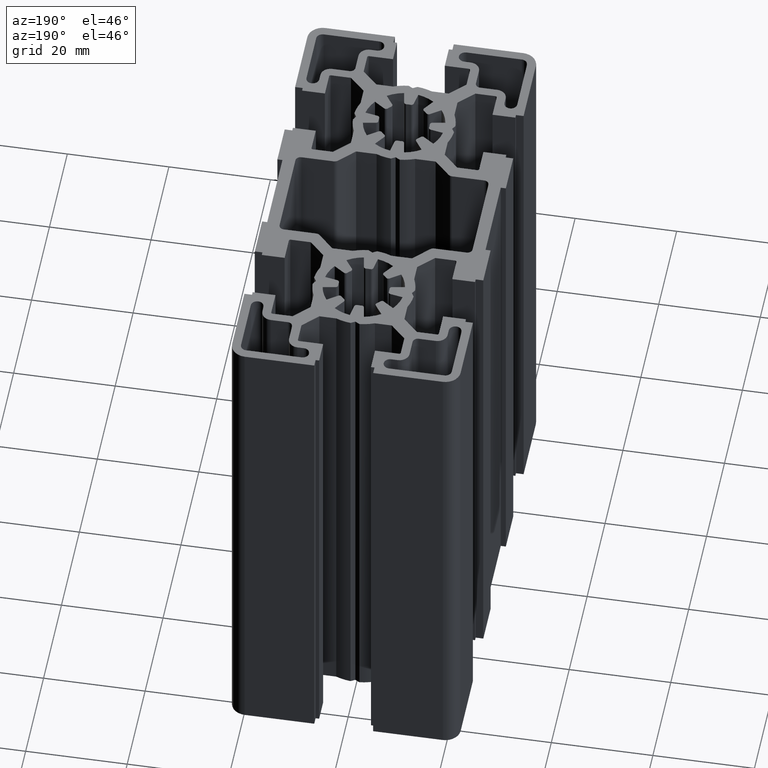
[diagram: clean part render]
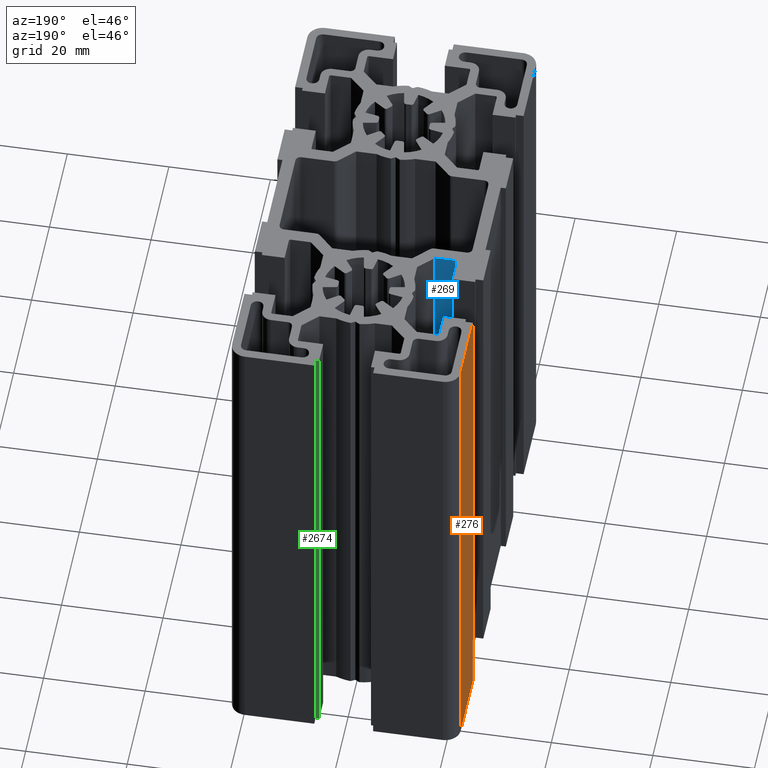
[diagram: same view with three faces highlighted in distinct colors, each labeled with its STEP entity id]
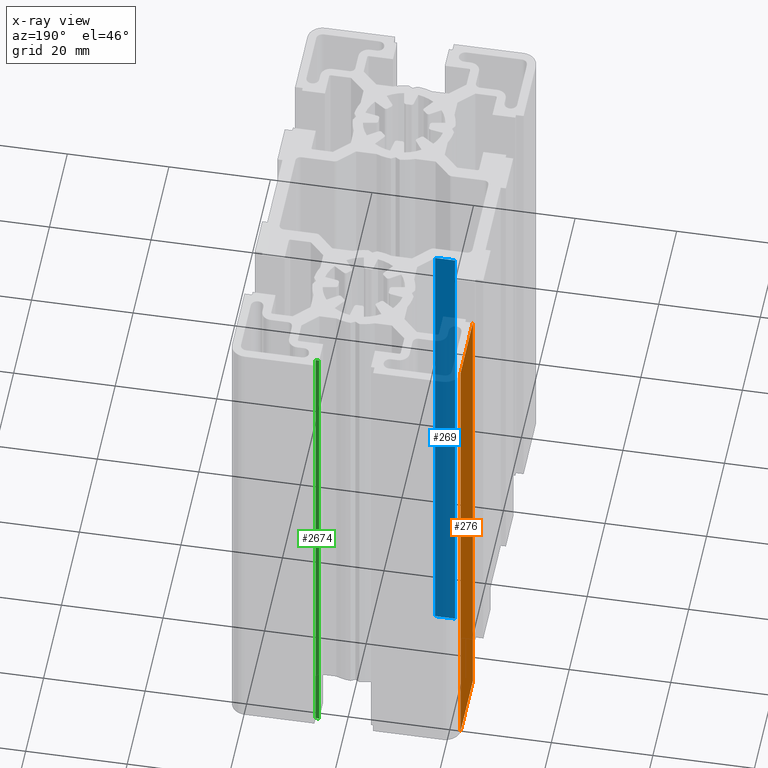
[diagram: x-ray of the same camera — body ghosted, the three highlighted faces saturated]
A machine part, auxiliary view with three faces highlighted in distinct colors.
The next image is the same camera in x-ray (body ghosted, the three faces saturated) — at least one of them is partly hidden behind the body in this view.
Their STEP definitions:

[orange] entity #276 — the highlighted planar face has unit normal (1, 0, 0).
#200 = ORIENTED_EDGE ( 'NONE', *, *, #277, .F. ) ;
#273 = EDGE_LOOP ( 'NONE', ( #287, #200, #279, #278 ) ) ;
#276 = ADVANCED_FACE ( 'NONE', ( #4441 ), #4452, .F. ) ;
#277 = EDGE_CURVE ( 'NONE', #1296, #311, #4482, .T. ) ;
#278 = ORIENTED_EDGE ( 'NONE', *, *, #290, .T. ) ;
#279 = ORIENTED_EDGE ( 'NONE', *, *, #1366, .F. ) ;
#287 = ORIENTED_EDGE ( 'NONE', *, *, #303, .T. ) ;
#290 = EDGE_CURVE ( 'NONE', #1299, #328, #4510, .T. ) ;
#303 = EDGE_CURVE ( 'NONE', #328, #311, #4489, .T. ) ;
#311 = VERTEX_POINT ( 'NONE', #4492 ) ;
#328 = VERTEX_POINT ( 'NONE', #4560 ) ;
#1296 = VERTEX_POINT ( 'NONE', #6278 ) ;
#1299 = VERTEX_POINT ( 'NONE', #6329 ) ;
#1366 = EDGE_CURVE ( 'NONE', #1299, #1296, #6429, .T. ) ;
#4434 = CARTESIAN_POINT ( 'NONE',  ( -22.50000000000000000, 28.29999900000001000, 100.0000000000000000 ) ) ;
#4441 = FACE_OUTER_BOUND ( 'NONE', #273, .T. ) ;
#4452 = PLANE ( 'NONE',  #4488 ) ;
#4474 = DIRECTION ( 'NONE',  ( -0.0000000000000000000, -0.0000000000000000000, -1.000000000000000000 ) ) ;
#4475 = VECTOR ( 'NONE', #4474, 1000.000000000000000 ) ;
#4476 = CARTESIAN_POINT ( 'NONE',  ( -22.50000000000000000, 28.29999900000001000, 100.0000000000000000 ) ) ;
#4478 = DIRECTION ( 'NONE',  ( 0.0000000000000000000, 0.0000000000000000000, -1.000000000000000000 ) ) ;
#4479 = DIRECTION ( 'NONE',  ( 1.000000000000000000, 0.0000000000000000000, 0.0000000000000000000 ) ) ;
#4482 = LINE ( 'NONE', #4476, #4475 ) ;
#4488 = AXIS2_PLACEMENT_3D ( 'NONE', #4434, #4479, #4478 ) ;
#4489 = LINE ( 'NONE', #4539, #4538 ) ;
#4492 = CARTESIAN_POINT ( 'NONE',  ( -22.50000000000000000, 28.29999900000001000, 0.0000000000000000000 ) ) ;
#4506 = DIRECTION ( 'NONE',  ( -0.0000000000000000000, -0.0000000000000000000, -1.000000000000000000 ) ) ;
#4508 = VECTOR ( 'NONE', #4506, 1000.000000000000000 ) ;
#4509 = CARTESIAN_POINT ( 'NONE',  ( -22.50000000000000000, 42.00000000000000000, 100.0000000000000000 ) ) ;
#4510 = LINE ( 'NONE', #4509, #4508 ) ;
#4537 = DIRECTION ( 'NONE',  ( -0.0000000000000000000, -1.000000000000000000, -0.0000000000000000000 ) ) ;
#4538 = VECTOR ( 'NONE', #4537, 1000.000000000000000 ) ;
#4539 = CARTESIAN_POINT ( 'NONE',  ( -22.50000000000000000, 28.29999900000001000, 0.0000000000000000000 ) ) ;
#4560 = CARTESIAN_POINT ( 'NONE',  ( -22.50000000000000000, 42.00000000000000000, 0.0000000000000000000 ) ) ;
#6278 = CARTESIAN_POINT ( 'NONE',  ( -22.50000000000000000, 28.29999900000001000, 100.0000000000000000 ) ) ;
#6329 = CARTESIAN_POINT ( 'NONE',  ( -22.50000000000000000, 42.00000000000000000, 100.0000000000000000 ) ) ;
#6426 = DIRECTION ( 'NONE',  ( -0.0000000000000000000, -1.000000000000000000, -0.0000000000000000000 ) ) ;
#6427 = VECTOR ( 'NONE', #6426, 1000.000000000000000 ) ;
#6428 = CARTESIAN_POINT ( 'NONE',  ( -22.50000000000000000, 28.29999900000001000, 100.0000000000000000 ) ) ;
#6429 = LINE ( 'NONE', #6428, #6427 ) ;

[blue] entity #269 — the highlighted planar face has unit normal (0, -1, 0).
#13 = ORIENTED_EDGE ( 'NONE', *, *, #263, .T. ) ;
#262 = EDGE_LOOP ( 'NONE', ( #266, #268, #272, #13 ) ) ;
#263 = EDGE_CURVE ( 'NONE', #1412, #4342, #4439, .T. ) ;
#266 = ORIENTED_EDGE ( 'NONE', *, *, #4339, .T. ) ;
#268 = ORIENTED_EDGE ( 'NONE', *, *, #270, .F. ) ;
#269 = ADVANCED_FACE ( 'NONE', ( #4442 ), #4451, .F. ) ;
#270 = EDGE_CURVE ( 'NONE', #1411, #4350, #4486, .T. ) ;
#272 = ORIENTED_EDGE ( 'NONE', *, *, #1410, .F. ) ;
#1410 = EDGE_CURVE ( 'NONE', #1412, #1411, #6513, .T. ) ;
#1411 = VERTEX_POINT ( 'NONE', #6520 ) ;
#1412 = VERTEX_POINT ( 'NONE', #6519 ) ;
#4339 = EDGE_CURVE ( 'NONE', #4342, #4350, #10637, .T. ) ;
#4342 = VERTEX_POINT ( 'NONE', #10608 ) ;
#4350 = VERTEX_POINT ( 'NONE', #10624 ) ;
#4416 = AXIS2_PLACEMENT_3D ( 'NONE', #4433, #4432, #4431 ) ;
#4431 = DIRECTION ( 'NONE',  ( 0.0000000000000000000, -0.0000000000000000000, -1.000000000000000000 ) ) ;
#4432 = DIRECTION ( 'NONE',  ( 0.0000000000000000000, -1.000000000000000000, 0.0000000000000000000 ) ) ;
#4433 = CARTESIAN_POINT ( 'NONE',  ( -12.24632034355965100, 12.37500000000000000, 100.0000000000000000 ) ) ;
#4436 = DIRECTION ( 'NONE',  ( -0.0000000000000000000, -0.0000000000000000000, -1.000000000000000000 ) ) ;
#4437 = VECTOR ( 'NONE', #4436, 1000.000000000000000 ) ;
#4438 = CARTESIAN_POINT ( 'NONE',  ( -12.24632034355965100, 12.37500000000000000, 100.0000000000000000 ) ) ;
#4439 = LINE ( 'NONE', #4438, #4437 ) ;
#4442 = FACE_OUTER_BOUND ( 'NONE', #262, .T. ) ;
#4451 = PLANE ( 'NONE',  #4416 ) ;
#4483 = DIRECTION ( 'NONE',  ( -0.0000000000000000000, -0.0000000000000000000, -1.000000000000000000 ) ) ;
#4484 = VECTOR ( 'NONE', #4483, 1000.000000000000000 ) ;
#4485 = CARTESIAN_POINT ( 'NONE',  ( -16.19999999999999900, 12.37500000000000000, 100.0000000000000000 ) ) ;
#4486 = LINE ( 'NONE', #4485, #4484 ) ;
#6510 = DIRECTION ( 'NONE',  ( -1.000000000000000000, 0.0000000000000000000, 0.0000000000000000000 ) ) ;
#6511 = VECTOR ( 'NONE', #6510, 1000.000000000000000 ) ;
#6512 = CARTESIAN_POINT ( 'NONE',  ( -12.24632034355965100, 12.37500000000000000, 100.0000000000000000 ) ) ;
#6513 = LINE ( 'NONE', #6512, #6511 ) ;
#6519 = CARTESIAN_POINT ( 'NONE',  ( -12.24632034355965100, 12.37500000000000000, 100.0000000000000000 ) ) ;
#6520 = CARTESIAN_POINT ( 'NONE',  ( -16.19999999999999900, 12.37500000000000000, 100.0000000000000000 ) ) ;
#10608 = CARTESIAN_POINT ( 'NONE',  ( -12.24632034355965100, 12.37500000000000000, 0.0000000000000000000 ) ) ;
#10624 = CARTESIAN_POINT ( 'NONE',  ( -16.19999999999999900, 12.37500000000000000, 0.0000000000000000000 ) ) ;
#10634 = DIRECTION ( 'NONE',  ( -1.000000000000000000, 0.0000000000000000000, 0.0000000000000000000 ) ) ;
#10635 = VECTOR ( 'NONE', #10634, 1000.000000000000000 ) ;
#10636 = CARTESIAN_POINT ( 'NONE',  ( -12.24632034355965100, 12.37500000000000000, 0.0000000000000000000 ) ) ;
#10637 = LINE ( 'NONE', #10636, #10635 ) ;

[green] entity #2674 — the highlighted planar face has unit normal (0, -1, 0).
#1589 = EDGE_CURVE ( 'NONE', #1672, #1619, #6818, .T. ) ;
#1619 = VERTEX_POINT ( 'NONE', #6890 ) ;
#1672 = VERTEX_POINT ( 'NONE', #6939 ) ;
#2674 = ADVANCED_FACE ( 'NONE', ( #8181 ), #8172, .F. ) ;
#2676 = ORIENTED_EDGE ( 'NONE', *, *, #3179, .T. ) ;
#2678 = ORIENTED_EDGE ( 'NONE', *, *, #2739, .F. ) ;
#2686 = EDGE_LOOP ( 'NONE', ( #2676, #2678, #2720, #2719 ) ) ;
#2698 = EDGE_CURVE ( 'NONE', #1672, #3246, #8242, .T. ) ;
#2719 = ORIENTED_EDGE ( 'NONE', *, *, #2698, .T. ) ;
#2720 = ORIENTED_EDGE ( 'NONE', *, *, #1589, .F. ) ;
#2739 = EDGE_CURVE ( 'NONE', #1619, #3325, #8249, .T. ) ;
#3179 = EDGE_CURVE ( 'NONE', #3246, #3325, #8857, .T. ) ;
#3246 = VERTEX_POINT ( 'NONE', #9019 ) ;
#3325 = VERTEX_POINT ( 'NONE', #9111 ) ;
#6815 = DIRECTION ( 'NONE',  ( -1.000000000000000000, 0.0000000000000000000, 0.0000000000000000000 ) ) ;
#6816 = VECTOR ( 'NONE', #6815, 1000.000000000000000 ) ;
#6817 = CARTESIAN_POINT ( 'NONE',  ( 5.799999000000015700, 43.50000000000000700, 100.0000000000000000 ) ) ;
#6818 = LINE ( 'NONE', #6817, #6816 ) ;
#6890 = CARTESIAN_POINT ( 'NONE',  ( 5.100000000000003200, 43.50000000000000700, 100.0000000000000000 ) ) ;
#6939 = CARTESIAN_POINT ( 'NONE',  ( 5.799999000000015700, 43.50000000000000700, 100.0000000000000000 ) ) ;
#8101 = CARTESIAN_POINT ( 'NONE',  ( 5.799999000000015700, 43.50000000000000700, 100.0000000000000000 ) ) ;
#8162 = DIRECTION ( 'NONE',  ( 0.0000000000000000000, -0.0000000000000000000, -1.000000000000000000 ) ) ;
#8163 = DIRECTION ( 'NONE',  ( 0.0000000000000000000, -1.000000000000000000, 0.0000000000000000000 ) ) ;
#8172 = PLANE ( 'NONE',  #8180 ) ;
#8180 = AXIS2_PLACEMENT_3D ( 'NONE', #8101, #8163, #8162 ) ;
#8181 = FACE_OUTER_BOUND ( 'NONE', #2686, .T. ) ;
#8239 = DIRECTION ( 'NONE',  ( -0.0000000000000000000, -0.0000000000000000000, -1.000000000000000000 ) ) ;
#8240 = VECTOR ( 'NONE', #8239, 1000.000000000000000 ) ;
#8241 = CARTESIAN_POINT ( 'NONE',  ( 5.799999000000015700, 43.50000000000000700, 100.0000000000000000 ) ) ;
#8242 = LINE ( 'NONE', #8241, #8240 ) ;
#8246 = DIRECTION ( 'NONE',  ( -0.0000000000000000000, -0.0000000000000000000, -1.000000000000000000 ) ) ;
#8247 = VECTOR ( 'NONE', #8246, 1000.000000000000000 ) ;
#8248 = CARTESIAN_POINT ( 'NONE',  ( 5.100000000000003200, 43.50000000000000700, 100.0000000000000000 ) ) ;
#8249 = LINE ( 'NONE', #8248, #8247 ) ;
#8857 = LINE ( 'NONE', #8901, #8900 ) ;
#8899 = DIRECTION ( 'NONE',  ( -1.000000000000000000, 0.0000000000000000000, 0.0000000000000000000 ) ) ;
#8900 = VECTOR ( 'NONE', #8899, 1000.000000000000000 ) ;
#8901 = CARTESIAN_POINT ( 'NONE',  ( 5.799999000000015700, 43.50000000000000700, 0.0000000000000000000 ) ) ;
#9019 = CARTESIAN_POINT ( 'NONE',  ( 5.799999000000015700, 43.50000000000000700, 0.0000000000000000000 ) ) ;
#9111 = CARTESIAN_POINT ( 'NONE',  ( 5.100000000000003200, 43.50000000000000700, 0.0000000000000000000 ) ) ;